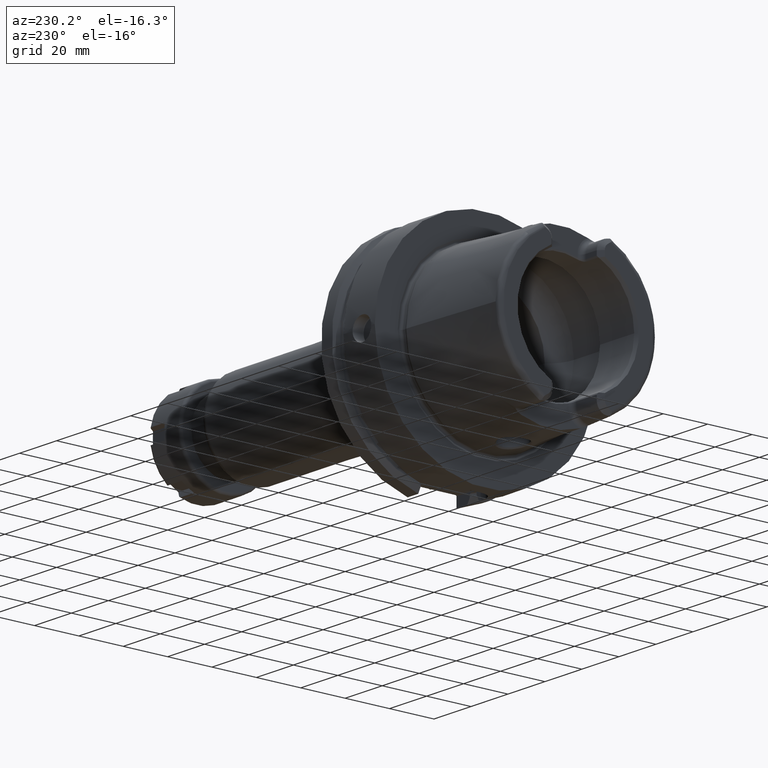
[diagram: clean part render]
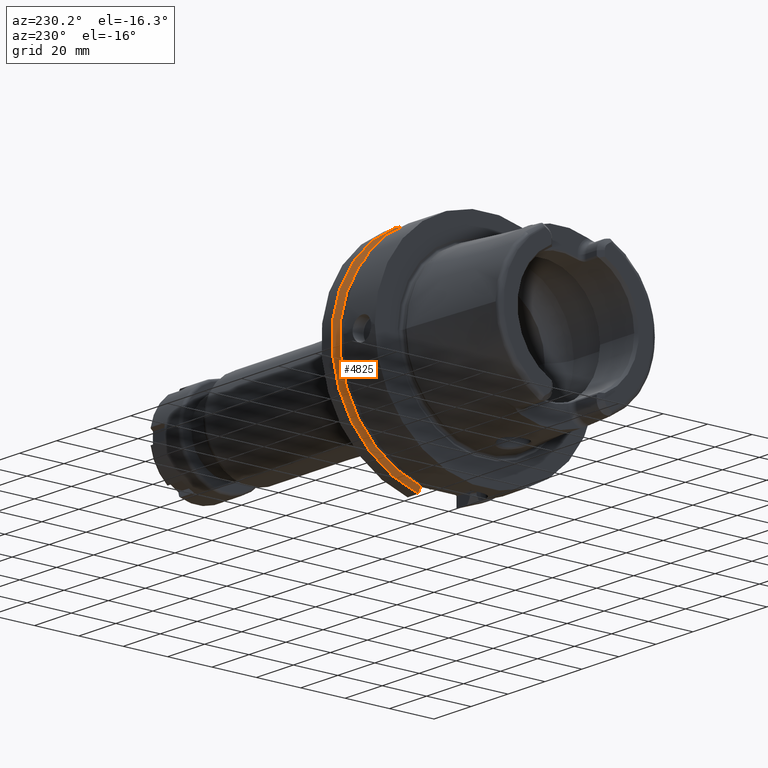
[diagram: same view with one face highlighted and labeled with its STEP entity id]
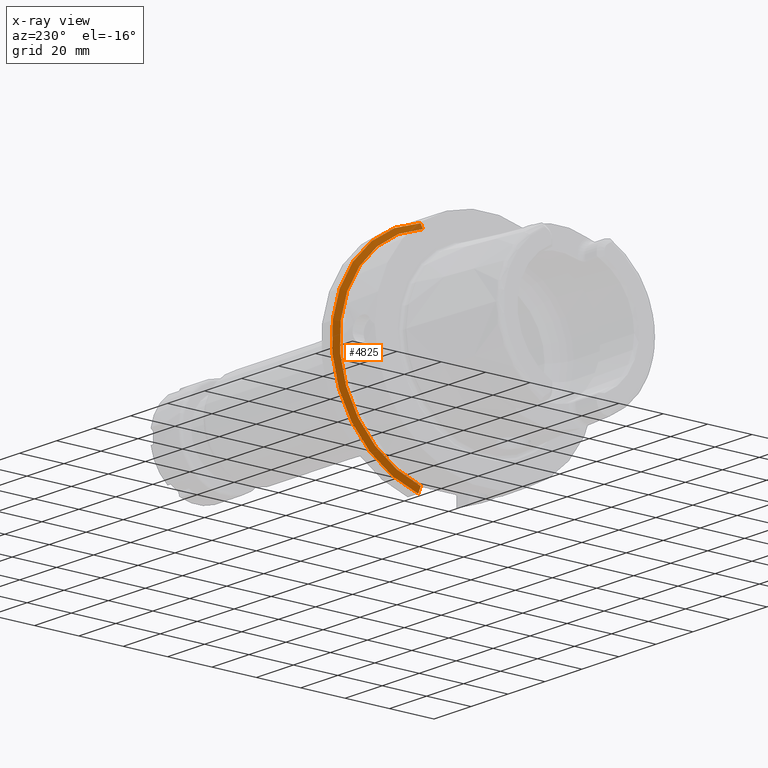
[diagram: x-ray of the same camera — body ghosted, the highlighted face saturated]
A machine part, auxiliary view. The second image highlights one B-rep face of the part: STEP entity #4825.
The next image is the same camera in x-ray: the body ghosted, the highlighted face saturated — about 2% of this face is hidden behind the body in this view.
In plain terms, the highlighted conical surface has half-angle 60 deg.
Its self-contained STEP definition (entity closure, byte-faithful):
#1627=CARTESIAN_POINT('',(2.324759526419E1,1.1021E1,-4.877025280845E1));
#1628=CARTESIAN_POINT('',(2.309075135062E1,1.1021E1,-4.849174120402E1));
#1629=CARTESIAN_POINT('',(2.277995385442E1,1.1021E1,-4.793961855272E1));
#1630=CARTESIAN_POINT('',(2.232250445742E1,1.1021E1,-4.712627442741E1));
#1631=CARTESIAN_POINT('',(2.202321382636E1,1.1021E1,-4.659366407718E1));
#1632=CARTESIAN_POINT('',(2.1875E1,1.1021E1,-4.632978673270E1));
#1634=CARTESIAN_POINT('',(2.324759526419E1,0.E0,0.E0));
#1635=DIRECTION('',(1.E0,0.E0,0.E0));
#1636=DIRECTION('',(0.E0,2.2042E-1,-9.754050561690E-1));
#1637=AXIS2_PLACEMENT_3D('',#1634,#1635,#1636);
#1639=CARTESIAN_POINT('',(2.1875E1,1.0021E1,4.655632222048E1));
#1640=CARTESIAN_POINT('',(2.202341002451E1,1.0021E1,4.681926318888E1));
#1641=CARTESIAN_POINT('',(2.232296264525E1,1.0021E1,4.734978916905E1));
#1642=CARTESIAN_POINT('',(2.278042159889E1,1.0021E1,4.815938834524E1));
#1643=CARTESIAN_POINT('',(2.309095197037E1,1.0021E1,4.870857046335E1));
#1644=CARTESIAN_POINT('',(2.324759526419E1,1.0021E1,4.898550355973E1));
#1646=CARTESIAN_POINT('',(2.1875E1,0.E0,0.E0));
#1647=DIRECTION('',(-1.E0,0.E0,0.E0));
#1648=DIRECTION('',(0.E0,2.104253231981E-1,9.776099341542E-1));
#1649=AXIS2_PLACEMENT_3D('',#1646,#1647,#1648);
#3072=CARTESIAN_POINT('',(2.1875E1,1.0021E1,4.655632222048E1));
#3073=VERTEX_POINT('',#3072);
#3075=VERTEX_POINT('',#1644);
#3108=CARTESIAN_POINT('',(2.1875E1,1.1021E1,-4.632978673270E1));
#3109=VERTEX_POINT('',#3108);
#3112=VERTEX_POINT('',#1627);
#4813=CARTESIAN_POINT('',(2.256129763210E1,0.E0,0.E0));
#4814=DIRECTION('',(1.E0,0.E0,0.E0));
#4815=DIRECTION('',(0.E0,-1.E0,0.E0));
#4816=AXIS2_PLACEMENT_3D('',#4813,#4814,#4815);
#4817=CONICAL_SURFACE('',#4816,4.881129763210E1,6.E1);
#4818=ORIENTED_EDGE('',*,*,#4403,.F.);
#4819=ORIENTED_EDGE('',*,*,#4337,.T.);
#4821=ORIENTED_EDGE('',*,*,#4820,.F.);
#4822=ORIENTED_EDGE('',*,*,#4776,.T.);
#4823=EDGE_LOOP('',(#4818,#4819,#4821,#4822));
#4824=FACE_OUTER_BOUND('',#4823,.F.);
#4825=ADVANCED_FACE('',(#4824),#4817,.T.);
#1633=B_SPLINE_CURVE_WITH_KNOTS('',3,(#1627,#1628,#1629,#1630,#1631,#1632),
.UNSPECIFIED.,.F.,.F.,(4,1,1,4),(0.E0,3.333333333333E-1,6.666666666667E-1,1.E0),
.UNSPECIFIED.);
#1638=CIRCLE('',#1637,5.E1);
#1645=B_SPLINE_CURVE_WITH_KNOTS('',3,(#1639,#1640,#1641,#1642,#1643,#1644),
.UNSPECIFIED.,.F.,.F.,(4,1,1,4),(0.E0,3.333333333333E-1,6.666666666667E-1,1.E0),
.UNSPECIFIED.);
#1650=CIRCLE('',#1649,4.762259526419E1);
#4337=EDGE_CURVE('',#3112,#3075,#1638,.T.);
#4403=EDGE_CURVE('',#3112,#3109,#1633,.T.);
#4776=EDGE_CURVE('',#3073,#3109,#1650,.T.);
#4820=EDGE_CURVE('',#3073,#3075,#1645,.T.);